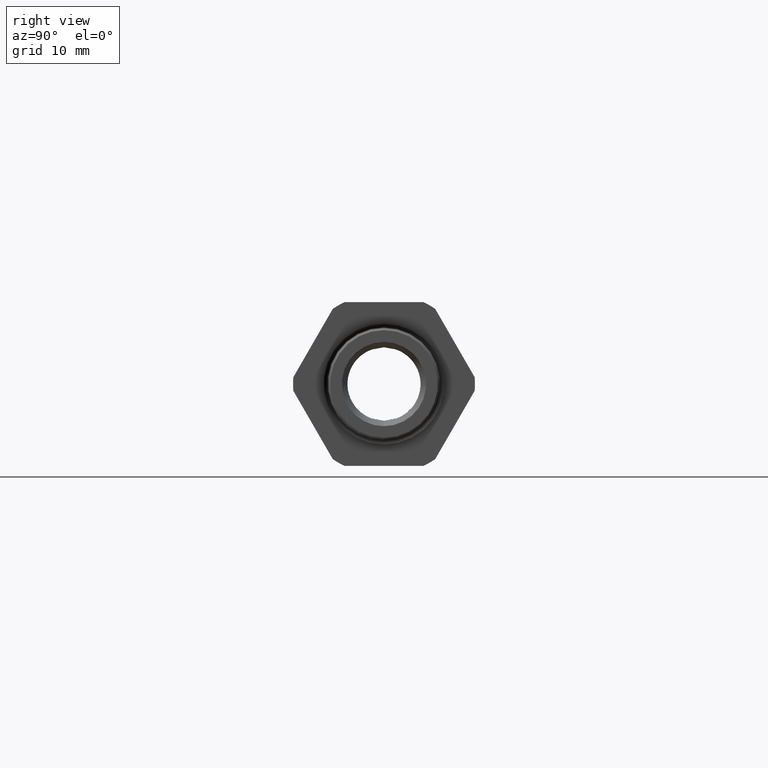
[diagram: clean part render]
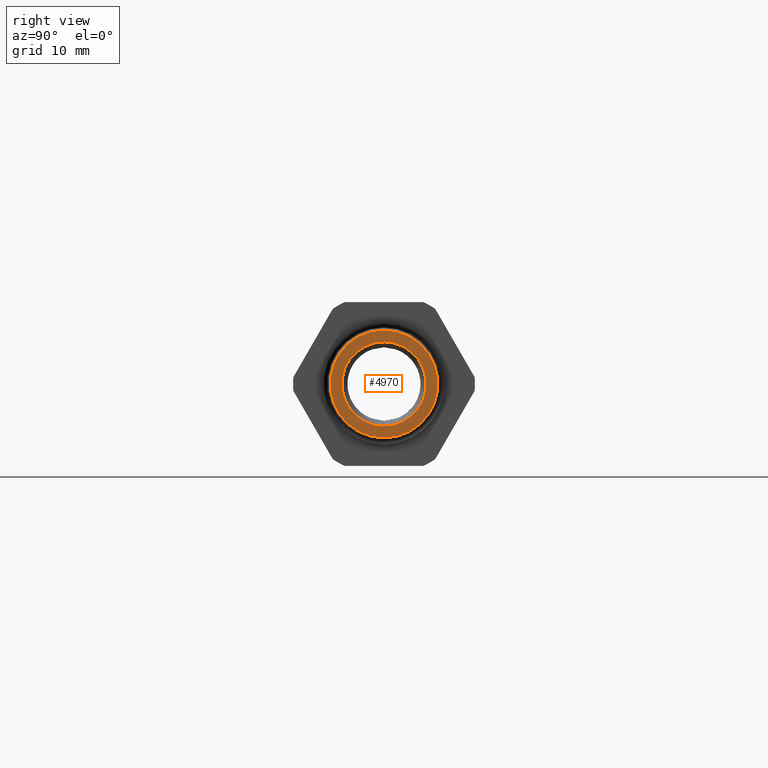
[diagram: same view with one face highlighted and labeled with its STEP entity id]
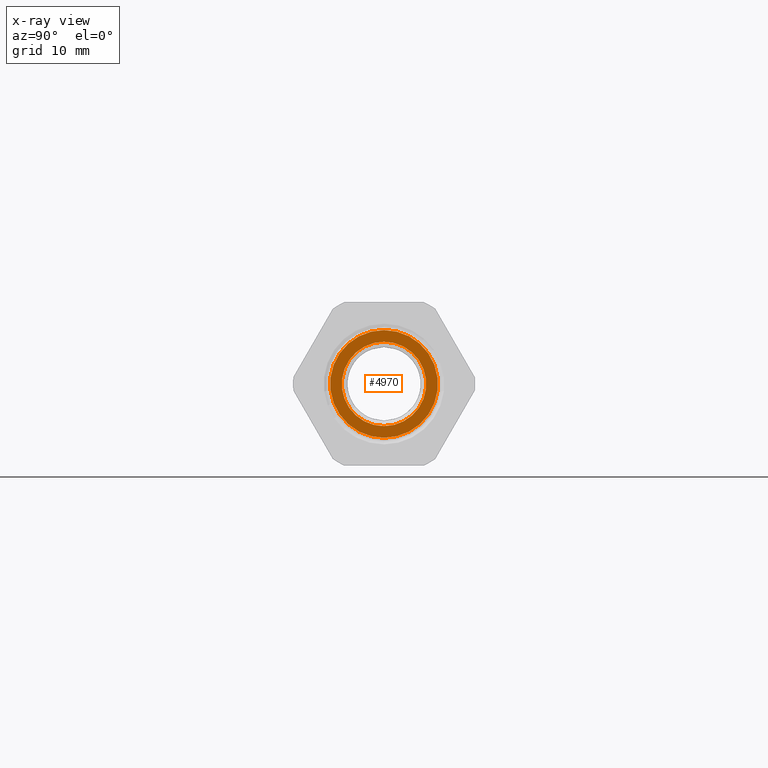
[diagram: x-ray of the same camera — body ghosted, the highlighted face saturated]
A machine part, right view. The second image highlights one B-rep face of the part: STEP entity #4970.
The next image is the same camera in x-ray: the body ghosted, the highlighted face saturated — about 0% of this face is hidden behind the body in this view.
In plain terms, the highlighted planar face has unit normal (1, 0, 0).
Its self-contained STEP definition (entity closure, byte-faithful):
#4510 = VERTEX_POINT ( 'NONE', #8747 ) ;
#4669 = VERTEX_POINT ( 'NONE', #8719 ) ;
#4684 = VERTEX_POINT ( 'NONE', #8828 ) ;
#4687 = EDGE_CURVE ( 'NONE', #4684, #4669, #8822, .T. ) ;
#4696 = VERTEX_POINT ( 'NONE', #8169 ) ;
#4702 = EDGE_CURVE ( 'NONE', #4510, #4696, #8160, .T. ) ;
#4937 = EDGE_CURVE ( 'NONE', #4696, #4510, #9141, .T. ) ;
#4959 = ORIENTED_EDGE ( 'NONE', *, *, #4687, .F. ) ;
#4963 = EDGE_CURVE ( 'NONE', #4669, #4684, #9193, .T. ) ;
#4964 = EDGE_LOOP ( 'NONE', ( #4965, #4959 ) ) ;
#4965 = ORIENTED_EDGE ( 'NONE', *, *, #4963, .F. ) ;
#4966 = EDGE_LOOP ( 'NONE', ( #4967, #4968 ) ) ;
#4967 = ORIENTED_EDGE ( 'NONE', *, *, #4937, .T. ) ;
#4968 = ORIENTED_EDGE ( 'NONE', *, *, #4702, .T. ) ;
#4970 = ADVANCED_FACE ( 'NONE', ( #9184, #9183 ), #9182, .T. ) ;
#8155 = DIRECTION ( 'NONE',  ( 1.000000000000000000, 0.0000000000000000000, 0.0000000000000000000 ) ) ;
#8157 = CARTESIAN_POINT ( 'NONE',  ( 0.2800000000000000300, 0.0000000000000000000, 0.0000000000000000000 ) ) ;
#8158 = AXIS2_PLACEMENT_3D ( 'NONE', #8157, #8155, #8773 ) ;
#8160 = CIRCLE ( 'NONE', #8158, 0.2859501221269158400 ) ;
#8169 = CARTESIAN_POINT ( 'NONE',  ( 0.2800000000000000300, 0.0000000000000000000, 0.2859501221269158400 ) ) ;
#8719 = CARTESIAN_POINT ( 'NONE',  ( 0.2800000000000000300, 0.0000000000000000000, -0.2240498778730849500 ) ) ;
#8747 = CARTESIAN_POINT ( 'NONE',  ( 0.2800000000000000300, 3.502554879918054700E-017, -0.2859501221269158400 ) ) ;
#8773 = DIRECTION ( 'NONE',  ( 0.0000000000000000000, 0.0000000000000000000, -1.000000000000000000 ) ) ;
#8817 = DIRECTION ( 'NONE',  ( 0.0000000000000000000, 0.0000000000000000000, -1.000000000000000000 ) ) ;
#8819 = DIRECTION ( 'NONE',  ( 1.000000000000000000, 0.0000000000000000000, 0.0000000000000000000 ) ) ;
#8820 = CARTESIAN_POINT ( 'NONE',  ( 0.2800000000000000300, 0.0000000000000000000, 0.0000000000000000000 ) ) ;
#8821 = AXIS2_PLACEMENT_3D ( 'NONE', #8820, #8819, #8817 ) ;
#8822 = CIRCLE ( 'NONE', #8821, 0.2240498778730849500 ) ;
#8828 = CARTESIAN_POINT ( 'NONE',  ( 0.2800000000000000300, 2.743819657866288800E-017, 0.2240498778730849500 ) ) ;
#9137 = DIRECTION ( 'NONE',  ( 0.0000000000000000000, 0.0000000000000000000, -1.000000000000000000 ) ) ;
#9138 = DIRECTION ( 'NONE',  ( 1.000000000000000000, 0.0000000000000000000, 0.0000000000000000000 ) ) ;
#9139 = CARTESIAN_POINT ( 'NONE',  ( 0.2800000000000000300, 0.0000000000000000000, 0.0000000000000000000 ) ) ;
#9140 = AXIS2_PLACEMENT_3D ( 'NONE', #9139, #9138, #9137 ) ;
#9141 = CIRCLE ( 'NONE', #9140, 0.2859501221269158400 ) ;
#9178 = DIRECTION ( 'NONE',  ( 0.0000000000000000000, 0.0000000000000000000, -1.000000000000000000 ) ) ;
#9179 = DIRECTION ( 'NONE',  ( 1.000000000000000000, 0.0000000000000000000, 0.0000000000000000000 ) ) ;
#9180 = CARTESIAN_POINT ( 'NONE',  ( 0.2800000000000000300, 0.2240498778730849500, 0.0000000000000000000 ) ) ;
#9181 = AXIS2_PLACEMENT_3D ( 'NONE', #9180, #9179, #9178 ) ;
#9182 = PLANE ( 'NONE',  #9181 ) ;
#9183 = FACE_BOUND ( 'NONE', #4964, .T. ) ;
#9184 = FACE_OUTER_BOUND ( 'NONE', #4966, .T. ) ;
#9190 = DIRECTION ( 'NONE',  ( 0.0000000000000000000, 0.0000000000000000000, -1.000000000000000000 ) ) ;
#9191 = DIRECTION ( 'NONE',  ( 1.000000000000000000, 0.0000000000000000000, 0.0000000000000000000 ) ) ;
#9192 = AXIS2_PLACEMENT_3D ( 'NONE', #9208, #9191, #9190 ) ;
#9193 = CIRCLE ( 'NONE', #9192, 0.2240498778730849500 ) ;
#9208 = CARTESIAN_POINT ( 'NONE',  ( 0.2800000000000000300, 0.0000000000000000000, 0.0000000000000000000 ) ) ;